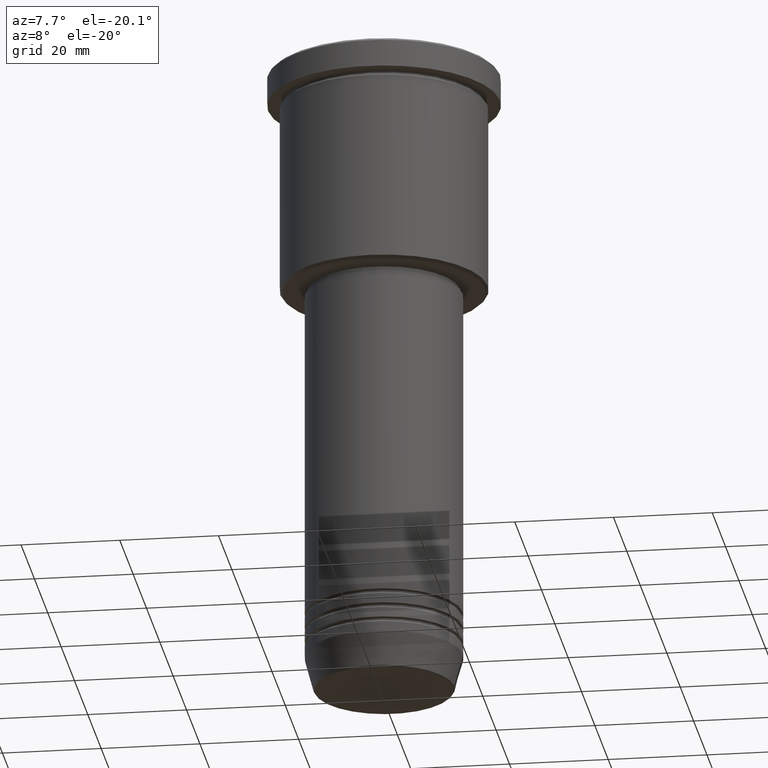
[diagram: clean part render]
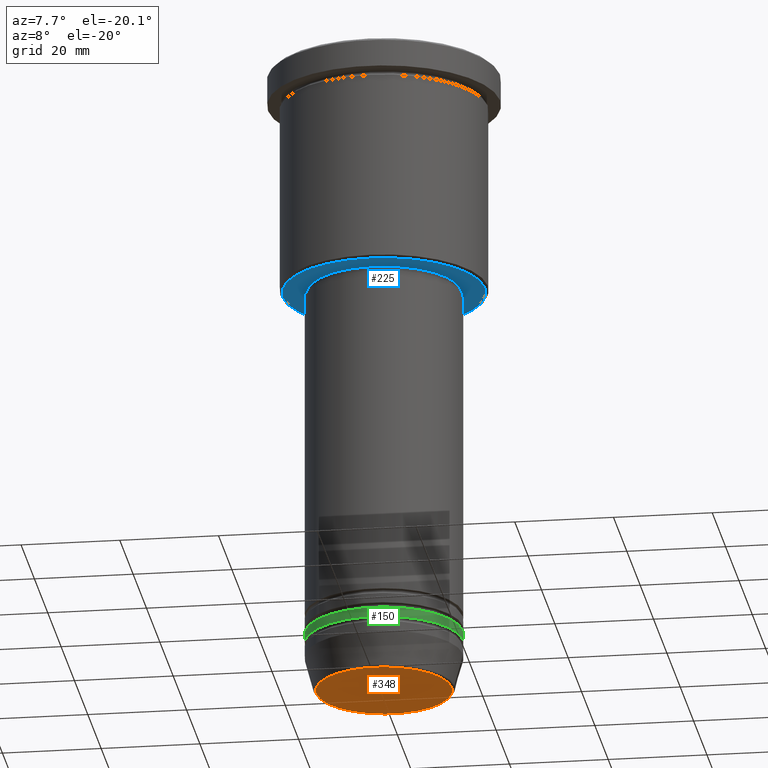
[diagram: same view with three faces highlighted in distinct colors, each labeled with its STEP entity id]
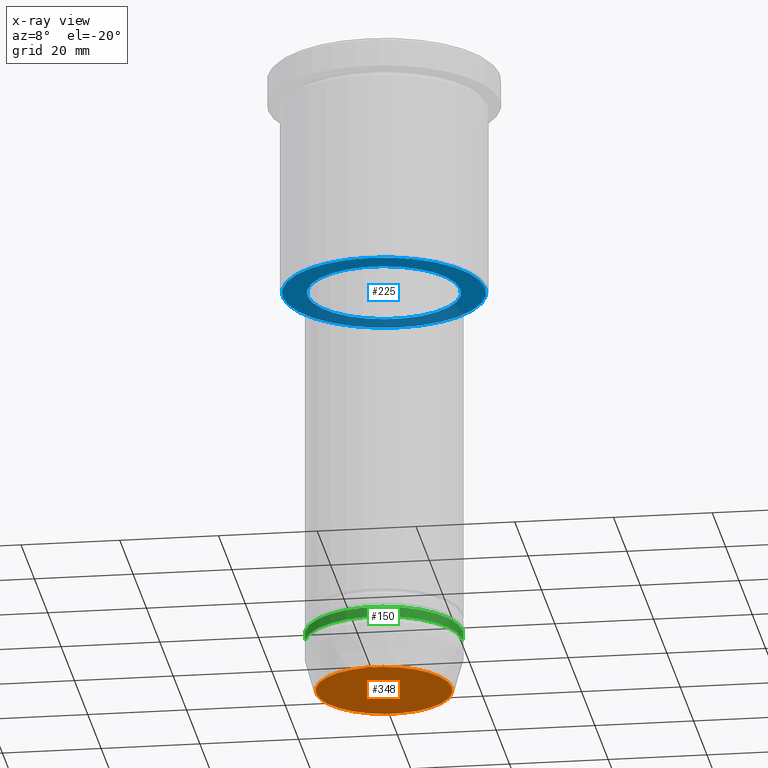
[diagram: x-ray of the same camera — body ghosted, the three highlighted faces saturated]
A machine part, auxiliary view with three faces highlighted in distinct colors.
The next image is the same camera in x-ray (body ghosted, the three faces saturated) — at least one of them is partly hidden behind the body in this view.
Their STEP definitions:

[orange] entity #348 — the highlighted planar face has unit normal (0, -0, 1).
#23 = CARTESIAN_POINT ( 'NONE',  ( 0.000000000000000000, 0.000000000000000000, -131.0000000000000000 ) ) ;
#54 = DIRECTION ( 'NONE',  ( 1.000000000000000000, 0.000000000000000000, 0.000000000000000000 ) ) ;
#58 = VERTEX_POINT ( 'NONE', #825 ) ;
#62 = EDGE_LOOP ( 'NONE', ( #641, #887 ) ) ;
#95 = DIRECTION ( 'NONE',  ( 1.000000000000000000, 0.000000000000000000, 0.000000000000000000 ) ) ;
#106 = CARTESIAN_POINT ( 'NONE',  ( 0.000000000000000000, 0.000000000000000000, -131.0000000000000000 ) ) ;
#108 = VERTEX_POINT ( 'NONE', #531 ) ;
#131 = DIRECTION ( 'NONE',  ( 0.000000000000000000, 0.000000000000000000, -1.000000000000000000 ) ) ;
#191 = EDGE_CURVE ( 'NONE', #58, #108, #797, .T. ) ;
#201 = PLANE ( 'NONE',  #969 ) ;
#232 = CARTESIAN_POINT ( 'NONE',  ( 0.000000000000000000, 0.000000000000000000, -131.0000000000000000 ) ) ;
#300 = DIRECTION ( 'NONE',  ( 0.000000000000000000, -0.000000000000000000, 1.000000000000000000 ) ) ;
#320 = DIRECTION ( 'NONE',  ( 1.000000000000000000, 0.000000000000000000, 0.000000000000000000 ) ) ;
#348 = ADVANCED_FACE ( 'NONE', ( #454 ), #201, .F. ) ;
#392 = AXIS2_PLACEMENT_3D ( 'NONE', #106, #756, #95 ) ;
#454 = FACE_OUTER_BOUND ( 'NONE', #62, .T. ) ;
#531 = CARTESIAN_POINT ( 'NONE',  ( 13.74069215899265473, 0.000000000000000000, -131.0000000000000000 ) ) ;
#582 = EDGE_CURVE ( 'NONE', #108, #58, #1113, .T. ) ;
#641 = ORIENTED_EDGE ( 'NONE', *, *, #582, .T. ) ;
#756 = DIRECTION ( 'NONE',  ( 0.000000000000000000, 0.000000000000000000, -1.000000000000000000 ) ) ;
#797 = CIRCLE ( 'NONE', #987, 13.74069215899265473 ) ;
#825 = CARTESIAN_POINT ( 'NONE',  ( -13.74069215899265473, 1.712322416342415197E-15, -131.0000000000000000 ) ) ;
#887 = ORIENTED_EDGE ( 'NONE', *, *, #191, .T. ) ;
#969 = AXIS2_PLACEMENT_3D ( 'NONE', #23, #300, #320 ) ;
#987 = AXIS2_PLACEMENT_3D ( 'NONE', #232, #131, #54 ) ;
#1113 = CIRCLE ( 'NONE', #392, 13.74069215899265473 ) ;

[blue] entity #225 — the highlighted planar face has unit normal (0, 0, -1).
#4 = DIRECTION ( 'NONE',  ( -0.000000000000000000, -0.000000000000000000, 1.000000000000000000 ) ) ;
#18 = CARTESIAN_POINT ( 'NONE',  ( 0.000000000000000000, 0.000000000000000000, -45.99999999999998579 ) ) ;
#37 = CARTESIAN_POINT ( 'NONE',  ( 20.50000000000001776, 0.000000000000000000, -45.99999999999998579 ) ) ;
#66 = CARTESIAN_POINT ( 'NONE',  ( -15.50000000000000000, 1.898202538678397557E-15, -45.99999999999998579 ) ) ;
#94 = DIRECTION ( 'NONE',  ( -1.000000000000000000, 0.000000000000000000, 0.000000000000000000 ) ) ;
#96 = CARTESIAN_POINT ( 'NONE',  ( 0.000000000000000000, 21.00000000000000000, -45.99999999999998579 ) ) ;
#163 = CARTESIAN_POINT ( 'NONE',  ( -20.50000000000001776, 2.541142108230759057E-15, -45.99999999999998579 ) ) ;
#223 = VERTEX_POINT ( 'NONE', #163 ) ;
#225 = ADVANCED_FACE ( 'NONE', ( #1150, #553 ), #723, .T. ) ;
#230 = CARTESIAN_POINT ( 'NONE',  ( 0.000000000000000000, 0.000000000000000000, -45.99999999999998579 ) ) ;
#233 = AXIS2_PLACEMENT_3D ( 'NONE', #18, #1019, #94 ) ;
#255 = DIRECTION ( 'NONE',  ( 0.000000000000000000, 0.000000000000000000, -1.000000000000000000 ) ) ;
#292 = DIRECTION ( 'NONE',  ( 1.000000000000000000, 0.000000000000000000, 0.000000000000000000 ) ) ;
#297 = EDGE_LOOP ( 'NONE', ( #742, #696 ) ) ;
#335 = DIRECTION ( 'NONE',  ( -1.000000000000000000, 0.000000000000000000, 0.000000000000000000 ) ) ;
#355 = VERTEX_POINT ( 'NONE', #37 ) ;
#387 = CARTESIAN_POINT ( 'NONE',  ( 15.50000000000000000, 0.000000000000000000, -45.99999999999998579 ) ) ;
#389 = AXIS2_PLACEMENT_3D ( 'NONE', #96, #636, #558 ) ;
#428 = AXIS2_PLACEMENT_3D ( 'NONE', #230, #599, #292 ) ;
#449 = CIRCLE ( 'NONE', #1111, 20.50000000000001776 ) ;
#469 = CIRCLE ( 'NONE', #428, 15.50000000000000000 ) ;
#494 = ORIENTED_EDGE ( 'NONE', *, *, #973, .T. ) ;
#541 = VERTEX_POINT ( 'NONE', #387 ) ;
#553 = FACE_BOUND ( 'NONE', #683, .T. ) ;
#558 = DIRECTION ( 'NONE',  ( -1.000000000000000000, 0.000000000000000000, -0.000000000000000000 ) ) ;
#599 = DIRECTION ( 'NONE',  ( -0.000000000000000000, -0.000000000000000000, 1.000000000000000000 ) ) ;
#630 = CARTESIAN_POINT ( 'NONE',  ( 0.000000000000000000, 0.000000000000000000, -45.99999999999998579 ) ) ;
#636 = DIRECTION ( 'NONE',  ( 0.000000000000000000, 0.000000000000000000, -1.000000000000000000 ) ) ;
#683 = EDGE_LOOP ( 'NONE', ( #1065, #494 ) ) ;
#696 = ORIENTED_EDGE ( 'NONE', *, *, #1074, .T. ) ;
#710 = CARTESIAN_POINT ( 'NONE',  ( 0.000000000000000000, 0.000000000000000000, -45.99999999999998579 ) ) ;
#723 = PLANE ( 'NONE',  #389 ) ;
#740 = EDGE_CURVE ( 'NONE', #355, #223, #747, .T. ) ;
#742 = ORIENTED_EDGE ( 'NONE', *, *, #740, .T. ) ;
#743 = DIRECTION ( 'NONE',  ( 1.000000000000000000, 0.000000000000000000, 0.000000000000000000 ) ) ;
#747 = CIRCLE ( 'NONE', #233, 20.50000000000001776 ) ;
#784 = EDGE_CURVE ( 'NONE', #541, #982, #988, .T. ) ;
#973 = EDGE_CURVE ( 'NONE', #982, #541, #469, .T. ) ;
#982 = VERTEX_POINT ( 'NONE', #66 ) ;
#988 = CIRCLE ( 'NONE', #1131, 15.50000000000000000 ) ;
#1019 = DIRECTION ( 'NONE',  ( 0.000000000000000000, 0.000000000000000000, -1.000000000000000000 ) ) ;
#1065 = ORIENTED_EDGE ( 'NONE', *, *, #784, .T. ) ;
#1074 = EDGE_CURVE ( 'NONE', #223, #355, #449, .T. ) ;
#1111 = AXIS2_PLACEMENT_3D ( 'NONE', #710, #255, #335 ) ;
#1131 = AXIS2_PLACEMENT_3D ( 'NONE', #630, #4, #743 ) ;
#1150 = FACE_OUTER_BOUND ( 'NONE', #297, .T. ) ;

[green] entity #150 — the highlighted cylindrical surface (partial cylindrical patch) has radius 16 mm, axis along (-0, -0, 1).
#59 = CARTESIAN_POINT ( 'NONE',  ( 16.00000000000000000, 0.000000000000000000, -120.9999999999999716 ) ) ;
#113 = DIRECTION ( 'NONE',  ( 1.000000000000000000, 0.000000000000000000, 0.000000000000000000 ) ) ;
#127 = CARTESIAN_POINT ( 'NONE',  ( 0.000000000000000000, 0.000000000000000000, -120.9999999999999716 ) ) ;
#150 = ADVANCED_FACE ( 'NONE', ( #382 ), #762, .T. ) ;
#154 = DIRECTION ( 'NONE',  ( -0.000000000000000000, -0.000000000000000000, 1.000000000000000000 ) ) ;
#167 = DIRECTION ( 'NONE',  ( -0.000000000000000000, -0.000000000000000000, 1.000000000000000000 ) ) ;
#184 = DIRECTION ( 'NONE',  ( 1.000000000000000000, 0.000000000000000000, 0.000000000000000000 ) ) ;
#307 = CARTESIAN_POINT ( 'NONE',  ( -16.00000000000000000, 1.959434878635765131E-15, -120.9999999999999716 ) ) ;
#312 = AXIS2_PLACEMENT_3D ( 'NONE', #858, #1030, #584 ) ;
#346 = LINE ( 'NONE', #892, #830 ) ;
#351 = CIRCLE ( 'NONE', #601, 16.00000000000000000 ) ;
#379 = VERTEX_POINT ( 'NONE', #307 ) ;
#382 = FACE_OUTER_BOUND ( 'NONE', #396, .T. ) ;
#396 = EDGE_LOOP ( 'NONE', ( #1158, #614, #403, #893 ) ) ;
#403 = ORIENTED_EDGE ( 'NONE', *, *, #1035, .T. ) ;
#481 = CARTESIAN_POINT ( 'NONE',  ( 0.000000000000000000, 0.000000000000000000, -118.9999999999999858 ) ) ;
#501 = DIRECTION ( 'NONE',  ( -0.000000000000000000, -0.000000000000000000, 1.000000000000000000 ) ) ;
#526 = AXIS2_PLACEMENT_3D ( 'NONE', #127, #501, #113 ) ;
#536 = VERTEX_POINT ( 'NONE', #1025 ) ;
#584 = DIRECTION ( 'NONE',  ( 1.000000000000000000, 0.000000000000000000, 0.000000000000000000 ) ) ;
#601 = AXIS2_PLACEMENT_3D ( 'NONE', #481, #841, #184 ) ;
#614 = ORIENTED_EDGE ( 'NONE', *, *, #889, .T. ) ;
#726 = EDGE_CURVE ( 'NONE', #1048, #536, #351, .T. ) ;
#762 = CYLINDRICAL_SURFACE ( 'NONE', #312, 16.00000000000000000 ) ;
#798 = CARTESIAN_POINT ( 'NONE',  ( 16.00000000000000000, 0.000000000000000000, 0.000000000000000000 ) ) ;
#830 = VECTOR ( 'NONE', #167, 1000.000000000000000 ) ;
#841 = DIRECTION ( 'NONE',  ( -0.000000000000000000, -0.000000000000000000, 1.000000000000000000 ) ) ;
#858 = CARTESIAN_POINT ( 'NONE',  ( 0.000000000000000000, 0.000000000000000000, 0.000000000000000000 ) ) ;
#877 = VECTOR ( 'NONE', #154, 1000.000000000000000 ) ;
#889 = EDGE_CURVE ( 'NONE', #379, #1018, #1096, .T. ) ;
#892 = CARTESIAN_POINT ( 'NONE',  ( -16.00000000000000000, 1.959434878635765131E-15, 0.000000000000000000 ) ) ;
#893 = ORIENTED_EDGE ( 'NONE', *, *, #726, .F. ) ;
#903 = CARTESIAN_POINT ( 'NONE',  ( -16.00000000000000000, 1.959434878635765131E-15, -118.9999999999999858 ) ) ;
#907 = LINE ( 'NONE', #798, #877 ) ;
#1003 = EDGE_CURVE ( 'NONE', #379, #1048, #346, .T. ) ;
#1018 = VERTEX_POINT ( 'NONE', #59 ) ;
#1025 = CARTESIAN_POINT ( 'NONE',  ( 16.00000000000000000, 0.000000000000000000, -118.9999999999999858 ) ) ;
#1030 = DIRECTION ( 'NONE',  ( -0.000000000000000000, -0.000000000000000000, 1.000000000000000000 ) ) ;
#1035 = EDGE_CURVE ( 'NONE', #1018, #536, #907, .T. ) ;
#1048 = VERTEX_POINT ( 'NONE', #903 ) ;
#1096 = CIRCLE ( 'NONE', #526, 16.00000000000000000 ) ;
#1158 = ORIENTED_EDGE ( 'NONE', *, *, #1003, .F. ) ;